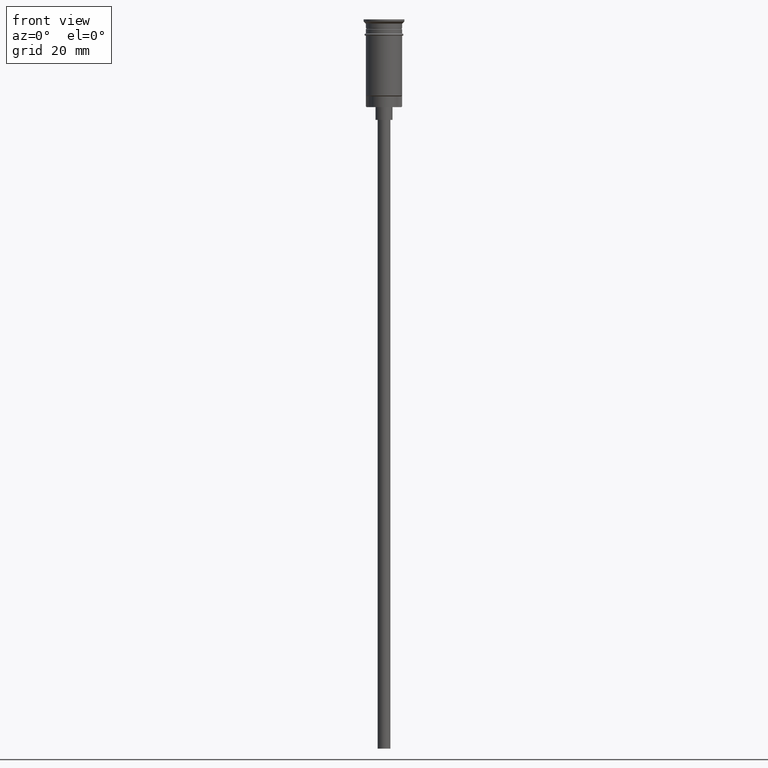
[diagram: clean part render]
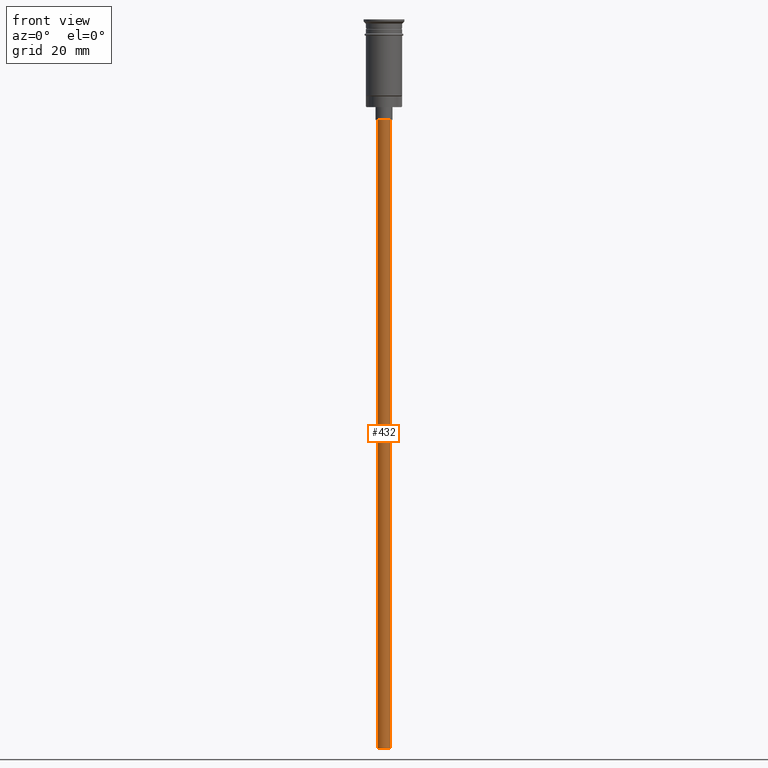
[diagram: same view with one face highlighted and labeled with its STEP entity id]
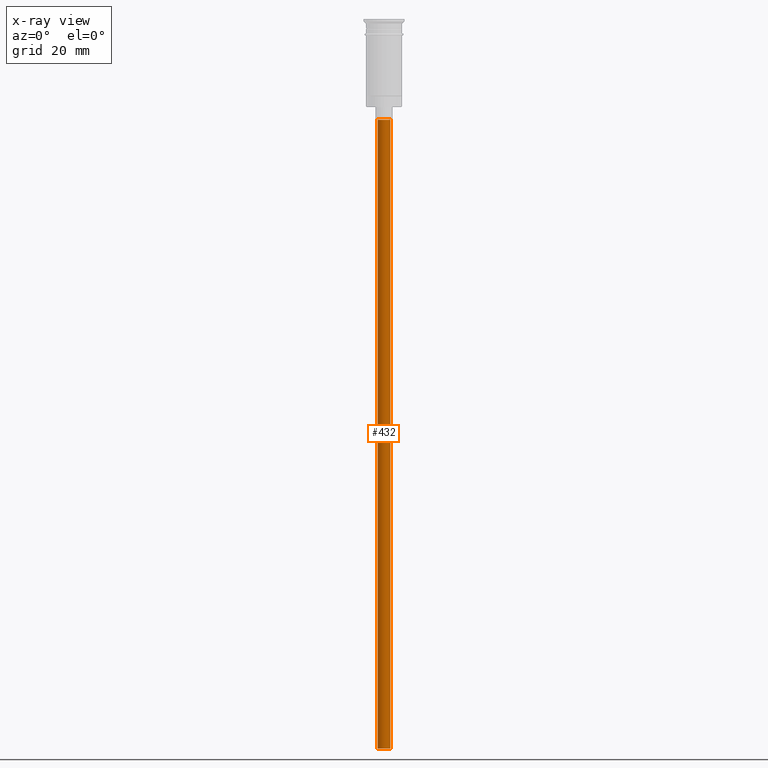
[diagram: x-ray of the same camera — body ghosted, the highlighted face saturated]
A machine part, front view. The second image highlights one B-rep face of the part: STEP entity #432.
The next image is the same camera in x-ray: the body ghosted, the highlighted face saturated — about 0% of this face is hidden behind the body in this view.
In plain terms, the highlighted cylindrical surface (edge-blend (fillet) strip) has radius 1.5 mm, axis along (-0, -0, 1).
Its self-contained STEP definition (entity closure, byte-faithful):
#6 = LINE ( 'NONE', #1227, #1577 ) ;
#8 = CARTESIAN_POINT ( 'NONE',  ( 0.000000000000000000, 0.000000000000000000, -170.4999999999999716 ) ) ;
#62 = CARTESIAN_POINT ( 'NONE',  ( -1.500000000000000222, 1.836970198721030181E-16, -170.4999999999999716 ) ) ;
#89 = ORIENTED_EDGE ( 'NONE', *, *, #1444, .T. ) ;
#242 = VERTEX_POINT ( 'NONE', #1520 ) ;
#323 = AXIS2_PLACEMENT_3D ( 'NONE', #8, #377, #1120 ) ;
#377 = DIRECTION ( 'NONE',  ( 0.000000000000000000, 0.000000000000000000, -1.000000000000000000 ) ) ;
#410 = VERTEX_POINT ( 'NONE', #926 ) ;
#411 = CARTESIAN_POINT ( 'NONE',  ( 0.000000000000000000, 0.000000000000000000, -170.4999999999999716 ) ) ;
#432 = ADVANCED_FACE ( 'NONE', ( #810 ), #543, .T. ) ;
#492 = CIRCLE ( 'NONE', #1207, 1.500000000000000222 ) ;
#543 = CYLINDRICAL_SURFACE ( 'NONE', #1073, 1.500000000000000222 ) ;
#682 = CARTESIAN_POINT ( 'NONE',  ( 0.000000000000000000, 0.000000000000000000, -23.49999999999999645 ) ) ;
#701 = LINE ( 'NONE', #1204, #1261 ) ;
#767 = EDGE_CURVE ( 'NONE', #886, #242, #492, .T. ) ;
#810 = FACE_OUTER_BOUND ( 'NONE', #974, .T. ) ;
#869 = DIRECTION ( 'NONE',  ( -0.000000000000000000, -0.000000000000000000, 1.000000000000000000 ) ) ;
#886 = VERTEX_POINT ( 'NONE', #1534 ) ;
#909 = DIRECTION ( 'NONE',  ( 1.000000000000000000, 0.000000000000000000, 0.000000000000000000 ) ) ;
#926 = CARTESIAN_POINT ( 'NONE',  ( 1.500000000000000222, 0.000000000000000000, -170.4999999999999716 ) ) ;
#955 = DIRECTION ( 'NONE',  ( -0.000000000000000000, -0.000000000000000000, 1.000000000000000000 ) ) ;
#967 = CIRCLE ( 'NONE', #323, 1.500000000000000222 ) ;
#974 = EDGE_LOOP ( 'NONE', ( #1334, #1358, #89, #1243 ) ) ;
#1073 = AXIS2_PLACEMENT_3D ( 'NONE', #411, #1170, #909 ) ;
#1120 = DIRECTION ( 'NONE',  ( -1.000000000000000000, 0.000000000000000000, 0.000000000000000000 ) ) ;
#1164 = EDGE_CURVE ( 'NONE', #410, #1217, #967, .T. ) ;
#1169 = DIRECTION ( 'NONE',  ( -1.000000000000000000, 0.000000000000000000, 0.000000000000000000 ) ) ;
#1170 = DIRECTION ( 'NONE',  ( -0.000000000000000000, -0.000000000000000000, 1.000000000000000000 ) ) ;
#1204 = CARTESIAN_POINT ( 'NONE',  ( 1.500000000000000222, 0.000000000000000000, -170.4999999999999716 ) ) ;
#1207 = AXIS2_PLACEMENT_3D ( 'NONE', #682, #1527, #1169 ) ;
#1217 = VERTEX_POINT ( 'NONE', #62 ) ;
#1227 = CARTESIAN_POINT ( 'NONE',  ( -1.500000000000000222, 1.836970198721030181E-16, -170.4999999999999716 ) ) ;
#1243 = ORIENTED_EDGE ( 'NONE', *, *, #767, .T. ) ;
#1261 = VECTOR ( 'NONE', #955, 1000.000000000000000 ) ;
#1334 = ORIENTED_EDGE ( 'NONE', *, *, #1565, .F. ) ;
#1358 = ORIENTED_EDGE ( 'NONE', *, *, #1164, .F. ) ;
#1444 = EDGE_CURVE ( 'NONE', #410, #886, #701, .T. ) ;
#1520 = CARTESIAN_POINT ( 'NONE',  ( -1.500000000000000222, 1.836970198721030181E-16, -23.49999999999999645 ) ) ;
#1527 = DIRECTION ( 'NONE',  ( 0.000000000000000000, 0.000000000000000000, -1.000000000000000000 ) ) ;
#1534 = CARTESIAN_POINT ( 'NONE',  ( 1.500000000000000222, 0.000000000000000000, -23.49999999999999645 ) ) ;
#1565 = EDGE_CURVE ( 'NONE', #1217, #242, #6, .T. ) ;
#1577 = VECTOR ( 'NONE', #869, 1000.000000000000000 ) ;